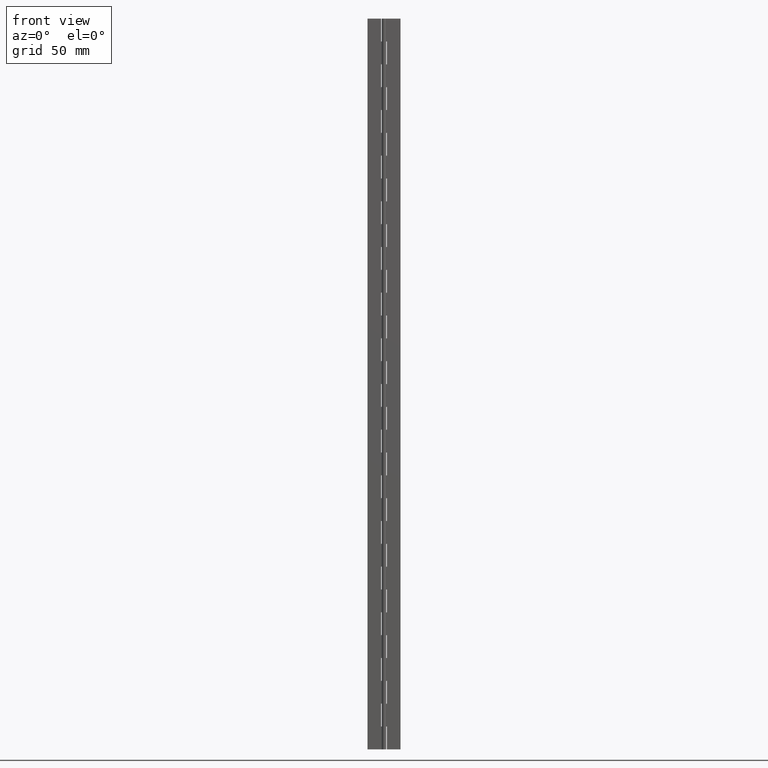
[diagram: clean part render]
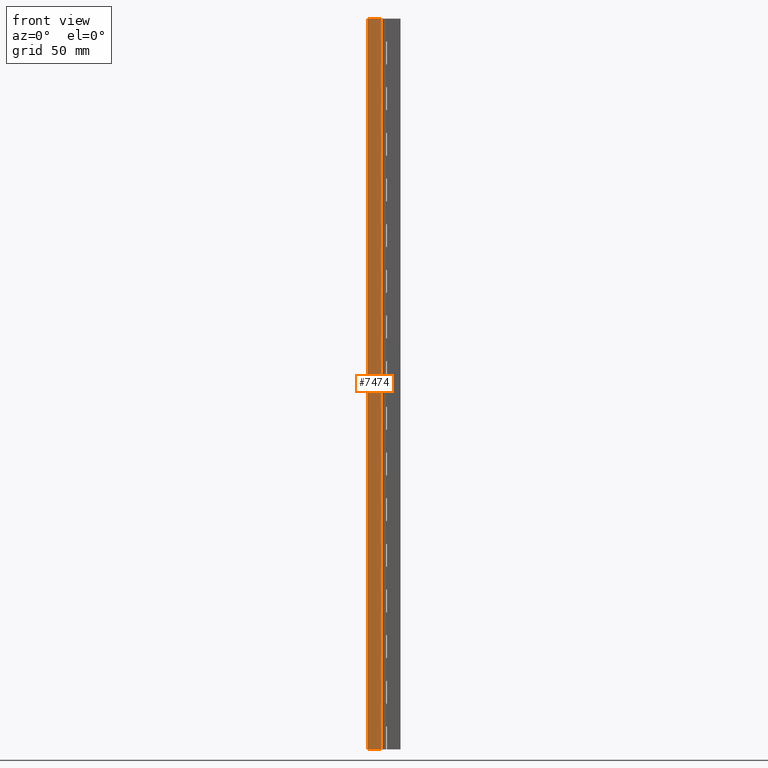
[diagram: same view with one face highlighted and labeled with its STEP entity id]
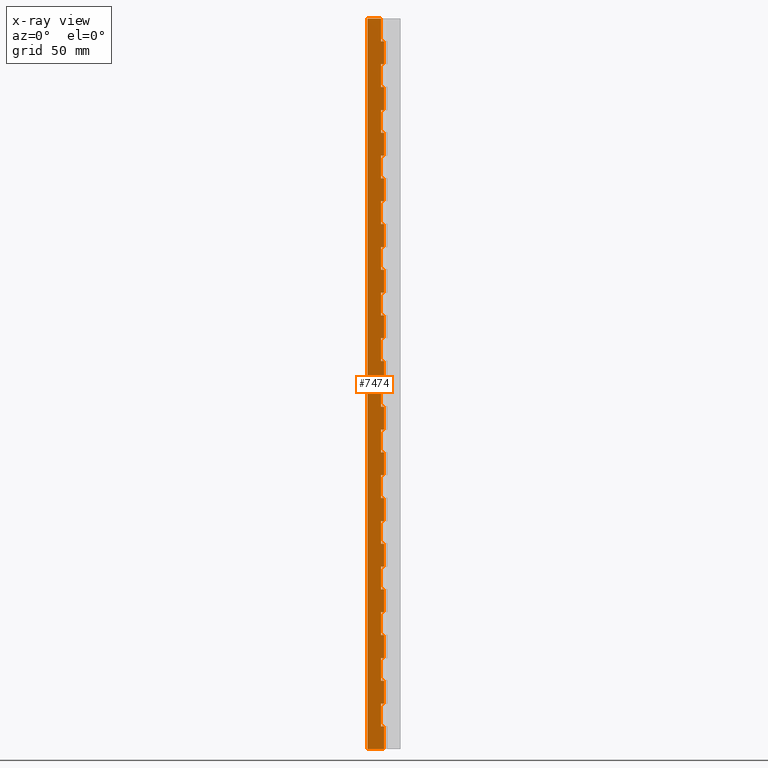
[diagram: x-ray of the same camera — body ghosted, the highlighted face saturated]
A machine part, front view. The second image highlights one B-rep face of the part: STEP entity #7474.
The next image is the same camera in x-ray: the body ghosted, the highlighted face saturated — about 0% of this face is hidden behind the body in this view.
In plain terms, the highlighted face is a freeform B-spline surface patch.
Its self-contained STEP definition (entity closure, byte-faithful):
#4486=CARTESIAN_POINT('',(-1.599998000000000,0.750000000000028,400.0));
#4487=VERTEX_POINT('',#4486);
#4488=CARTESIAN_POINT('',(-1.599998000000000,0.750000000000028,387.500000000000000));
#4489=VERTEX_POINT('',#4488);
#4490=CARTESIAN_POINT('',(-1.599998000000000,0.750000000000028,400.0));
#4491=CARTESIAN_POINT('',(-1.599998000000000,0.750000000000028,387.500000000000000));
#4492=QUASI_UNIFORM_CURVE('',1,(#4490,#4491),.UNSPECIFIED.,.F.,.U.);
#4493=EDGE_CURVE('',#4487,#4489,#4492,.T.);
#4551=CARTESIAN_POINT('',(4.592507E-017,0.750000000000000,387.500000000000000));
#4552=VERTEX_POINT('',#4551);
#4553=CARTESIAN_POINT('',(-1.599998000000000,0.750000000000028,387.500000000000000));
#4554=CARTESIAN_POINT('',(4.592507E-017,0.750000000000000,387.500000000000000));
#4555=QUASI_UNIFORM_CURVE('',1,(#4553,#4554),.UNSPECIFIED.,.F.,.U.);
#4556=EDGE_CURVE('',#4489,#4552,#4555,.T.);
#4622=CARTESIAN_POINT('',(4.592274E-017,0.750000000000000,375.0));
#4623=VERTEX_POINT('',#4622);
#4643=CARTESIAN_POINT('',(-1.599998000000000,0.750000000000028,375.0));
#4644=VERTEX_POINT('',#4643);
#4645=CARTESIAN_POINT('',(4.592274E-017,0.750000000000000,375.0));
#4646=CARTESIAN_POINT('',(-1.599998000000000,0.750000000000028,375.0));
#4647=QUASI_UNIFORM_CURVE('',1,(#4645,#4646),.UNSPECIFIED.,.F.,.U.);
#4648=EDGE_CURVE('',#4623,#4644,#4647,.T.);
#4670=CARTESIAN_POINT('',(-1.599998000000000,0.750000000000028,362.500000000000000));
#4671=VERTEX_POINT('',#4670);
#4672=CARTESIAN_POINT('',(-1.599998000000000,0.750000000000028,375.0));
#4673=CARTESIAN_POINT('',(-1.599998000000000,0.750000000000028,362.500000000000000));
#4674=QUASI_UNIFORM_CURVE('',1,(#4672,#4673),.UNSPECIFIED.,.F.,.U.);
#4675=EDGE_CURVE('',#4644,#4671,#4674,.T.);
#4727=CARTESIAN_POINT('',(4.592507E-017,0.750000000000000,362.500000000000000));
#4728=VERTEX_POINT('',#4727);
#4729=CARTESIAN_POINT('',(-1.599998000000000,0.750000000000028,362.500000000000000));
#4730=CARTESIAN_POINT('',(4.592507E-017,0.750000000000000,362.500000000000000));
#4731=QUASI_UNIFORM_CURVE('',1,(#4729,#4730),.UNSPECIFIED.,.F.,.U.);
#4732=EDGE_CURVE('',#4671,#4728,#4731,.T.);
#4798=CARTESIAN_POINT('',(4.592274E-017,0.750000000000000,350.0));
#4799=VERTEX_POINT('',#4798);
#4819=CARTESIAN_POINT('',(-1.599998000000000,0.750000000000028,350.0));
#4820=VERTEX_POINT('',#4819);
#4821=CARTESIAN_POINT('',(4.592274E-017,0.750000000000000,350.0));
#4822=CARTESIAN_POINT('',(-1.599998000000000,0.750000000000028,350.0));
#4823=QUASI_UNIFORM_CURVE('',1,(#4821,#4822),.UNSPECIFIED.,.F.,.U.);
#4824=EDGE_CURVE('',#4799,#4820,#4823,.T.);
#4846=CARTESIAN_POINT('',(-1.599998000000000,0.750000000000028,337.500000000000000));
#4847=VERTEX_POINT('',#4846);
#4848=CARTESIAN_POINT('',(-1.599998000000000,0.750000000000028,350.0));
#4849=CARTESIAN_POINT('',(-1.599998000000000,0.750000000000028,337.500000000000000));
#4850=QUASI_UNIFORM_CURVE('',1,(#4848,#4849),.UNSPECIFIED.,.F.,.U.);
#4851=EDGE_CURVE('',#4820,#4847,#4850,.T.);
#4903=CARTESIAN_POINT('',(4.592507E-017,0.750000000000000,337.500000000000000));
#4904=VERTEX_POINT('',#4903);
#4905=CARTESIAN_POINT('',(-1.599998000000000,0.750000000000028,337.500000000000000));
#4906=CARTESIAN_POINT('',(4.592507E-017,0.750000000000000,337.500000000000000));
#4907=QUASI_UNIFORM_CURVE('',1,(#4905,#4906),.UNSPECIFIED.,.F.,.U.);
#4908=EDGE_CURVE('',#4847,#4904,#4907,.T.);
#4974=CARTESIAN_POINT('',(4.592274E-017,0.750000000000000,325.0));
#4975=VERTEX_POINT('',#4974);
#4995=CARTESIAN_POINT('',(-1.599998000000000,0.750000000000028,325.0));
#4996=VERTEX_POINT('',#4995);
#4997=CARTESIAN_POINT('',(4.592274E-017,0.750000000000000,325.0));
#4998=CARTESIAN_POINT('',(-1.599998000000000,0.750000000000028,325.0));
#4999=QUASI_UNIFORM_CURVE('',1,(#4997,#4998),.UNSPECIFIED.,.F.,.U.);
#5000=EDGE_CURVE('',#4975,#4996,#4999,.T.);
#5022=CARTESIAN_POINT('',(-1.599998000000000,0.750000000000028,312.500000000000000));
#5023=VERTEX_POINT('',#5022);
#5024=CARTESIAN_POINT('',(-1.599998000000000,0.750000000000028,325.0));
#5025=CARTESIAN_POINT('',(-1.599998000000000,0.750000000000028,312.500000000000000));
#5026=QUASI_UNIFORM_CURVE('',1,(#5024,#5025),.UNSPECIFIED.,.F.,.U.);
#5027=EDGE_CURVE('',#4996,#5023,#5026,.T.);
#5079=CARTESIAN_POINT('',(4.592507E-017,0.750000000000000,312.500000000000000));
#5080=VERTEX_POINT('',#5079);
#5081=CARTESIAN_POINT('',(-1.599998000000000,0.750000000000028,312.500000000000000));
#5082=CARTESIAN_POINT('',(4.592507E-017,0.750000000000000,312.500000000000000));
#5083=QUASI_UNIFORM_CURVE('',1,(#5081,#5082),.UNSPECIFIED.,.F.,.U.);
#5084=EDGE_CURVE('',#5023,#5080,#5083,.T.);
#5150=CARTESIAN_POINT('',(4.592274E-017,0.750000000000000,300.0));
#5151=VERTEX_POINT('',#5150);
#5171=CARTESIAN_POINT('',(-1.599998000000000,0.750000000000028,300.0));
#5172=VERTEX_POINT('',#5171);
#5173=CARTESIAN_POINT('',(4.592274E-017,0.750000000000000,300.0));
#5174=CARTESIAN_POINT('',(-1.599998000000000,0.750000000000028,300.0));
#5175=QUASI_UNIFORM_CURVE('',1,(#5173,#5174),.UNSPECIFIED.,.F.,.U.);
#5176=EDGE_CURVE('',#5151,#5172,#5175,.T.);
#5198=CARTESIAN_POINT('',(-1.599998000000000,0.750000000000028,287.500000000000000));
#5199=VERTEX_POINT('',#5198);
#5200=CARTESIAN_POINT('',(-1.599998000000000,0.750000000000028,300.0));
#5201=CARTESIAN_POINT('',(-1.599998000000000,0.750000000000028,287.500000000000000));
#5202=QUASI_UNIFORM_CURVE('',1,(#5200,#5201),.UNSPECIFIED.,.F.,.U.);
#5203=EDGE_CURVE('',#5172,#5199,#5202,.T.);
#5255=CARTESIAN_POINT('',(4.592507E-017,0.750000000000000,287.500000000000000));
#5256=VERTEX_POINT('',#5255);
#5257=CARTESIAN_POINT('',(-1.599998000000000,0.750000000000028,287.500000000000000));
#5258=CARTESIAN_POINT('',(4.592507E-017,0.750000000000000,287.500000000000000));
#5259=QUASI_UNIFORM_CURVE('',1,(#5257,#5258),.UNSPECIFIED.,.F.,.U.);
#5260=EDGE_CURVE('',#5199,#5256,#5259,.T.);
#5326=CARTESIAN_POINT('',(4.592274E-017,0.750000000000000,275.0));
#5327=VERTEX_POINT('',#5326);
#5347=CARTESIAN_POINT('',(-1.599998000000000,0.750000000000028,275.0));
#5348=VERTEX_POINT('',#5347);
#5349=CARTESIAN_POINT('',(4.592274E-017,0.750000000000000,275.0));
#5350=CARTESIAN_POINT('',(-1.599998000000000,0.750000000000028,275.0));
#5351=QUASI_UNIFORM_CURVE('',1,(#5349,#5350),.UNSPECIFIED.,.F.,.U.);
#5352=EDGE_CURVE('',#5327,#5348,#5351,.T.);
#5374=CARTESIAN_POINT('',(-1.599998000000000,0.750000000000028,262.500000000000000));
#5375=VERTEX_POINT('',#5374);
#5376=CARTESIAN_POINT('',(-1.599998000000000,0.750000000000028,275.0));
#5377=CARTESIAN_POINT('',(-1.599998000000000,0.750000000000028,262.500000000000000));
#5378=QUASI_UNIFORM_CURVE('',1,(#5376,#5377),.UNSPECIFIED.,.F.,.U.);
#5379=EDGE_CURVE('',#5348,#5375,#5378,.T.);
#5431=CARTESIAN_POINT('',(4.592507E-017,0.750000000000000,262.500000000000000));
#5432=VERTEX_POINT('',#5431);
#5433=CARTESIAN_POINT('',(-1.599998000000000,0.750000000000028,262.500000000000000));
#5434=CARTESIAN_POINT('',(4.592507E-017,0.750000000000000,262.500000000000000));
#5435=QUASI_UNIFORM_CURVE('',1,(#5433,#5434),.UNSPECIFIED.,.F.,.U.);
#5436=EDGE_CURVE('',#5375,#5432,#5435,.T.);
#5502=CARTESIAN_POINT('',(4.592274E-017,0.750000000000000,250.0));
#5503=VERTEX_POINT('',#5502);
#5523=CARTESIAN_POINT('',(-1.599998000000000,0.750000000000028,250.0));
#5524=VERTEX_POINT('',#5523);
#5525=CARTESIAN_POINT('',(4.592274E-017,0.750000000000000,250.0));
#5526=CARTESIAN_POINT('',(-1.599998000000000,0.750000000000028,250.0));
#5527=QUASI_UNIFORM_CURVE('',1,(#5525,#5526),.UNSPECIFIED.,.F.,.U.);
#5528=EDGE_CURVE('',#5503,#5524,#5527,.T.);
#5550=CARTESIAN_POINT('',(-1.599998000000000,0.750000000000028,237.500000000000000));
#5551=VERTEX_POINT('',#5550);
#5552=CARTESIAN_POINT('',(-1.599998000000000,0.750000000000028,250.0));
#5553=CARTESIAN_POINT('',(-1.599998000000000,0.750000000000028,237.500000000000000));
#5554=QUASI_UNIFORM_CURVE('',1,(#5552,#5553),.UNSPECIFIED.,.F.,.U.);
#5555=EDGE_CURVE('',#5524,#5551,#5554,.T.);
#5607=CARTESIAN_POINT('',(4.592507E-017,0.750000000000000,237.500000000000000));
#5608=VERTEX_POINT('',#5607);
#5609=CARTESIAN_POINT('',(-1.599998000000000,0.750000000000028,237.500000000000000));
#5610=CARTESIAN_POINT('',(4.592507E-017,0.750000000000000,237.500000000000000));
#5611=QUASI_UNIFORM_CURVE('',1,(#5609,#5610),.UNSPECIFIED.,.F.,.U.);
#5612=EDGE_CURVE('',#5551,#5608,#5611,.T.);
#5678=CARTESIAN_POINT('',(4.592274E-017,0.750000000000000,225.0));
#5679=VERTEX_POINT('',#5678);
#5699=CARTESIAN_POINT('',(-1.599998000000000,0.750000000000028,225.0));
#5700=VERTEX_POINT('',#5699);
#5701=CARTESIAN_POINT('',(4.592274E-017,0.750000000000000,225.0));
#5702=CARTESIAN_POINT('',(-1.599998000000000,0.750000000000028,225.0));
#5703=QUASI_UNIFORM_CURVE('',1,(#5701,#5702),.UNSPECIFIED.,.F.,.U.);
#5704=EDGE_CURVE('',#5679,#5700,#5703,.T.);
#5726=CARTESIAN_POINT('',(-1.599998000000000,0.750000000000028,212.500000000000000));
#5727=VERTEX_POINT('',#5726);
#5728=CARTESIAN_POINT('',(-1.599998000000000,0.750000000000028,225.0));
#5729=CARTESIAN_POINT('',(-1.599998000000000,0.750000000000028,212.500000000000000));
#5730=QUASI_UNIFORM_CURVE('',1,(#5728,#5729),.UNSPECIFIED.,.F.,.U.);
#5731=EDGE_CURVE('',#5700,#5727,#5730,.T.);
#5783=CARTESIAN_POINT('',(4.592507E-017,0.750000000000000,212.500000000000000));
#5784=VERTEX_POINT('',#5783);
#5785=CARTESIAN_POINT('',(-1.599998000000000,0.750000000000028,212.500000000000000));
#5786=CARTESIAN_POINT('',(4.592507E-017,0.750000000000000,212.500000000000000));
#5787=QUASI_UNIFORM_CURVE('',1,(#5785,#5786),.UNSPECIFIED.,.F.,.U.);
#5788=EDGE_CURVE('',#5727,#5784,#5787,.T.);
#5854=CARTESIAN_POINT('',(4.592274E-017,0.750000000000000,200.0));
#5855=VERTEX_POINT('',#5854);
#5875=CARTESIAN_POINT('',(-1.599998000000000,0.750000000000028,200.0));
#5876=VERTEX_POINT('',#5875);
#5877=CARTESIAN_POINT('',(4.592274E-017,0.750000000000000,200.0));
#5878=CARTESIAN_POINT('',(-1.599998000000000,0.750000000000028,200.0));
#5879=QUASI_UNIFORM_CURVE('',1,(#5877,#5878),.UNSPECIFIED.,.F.,.U.);
#5880=EDGE_CURVE('',#5855,#5876,#5879,.T.);
#5902=CARTESIAN_POINT('',(-1.599998000000000,0.750000000000028,187.500000000000000));
#5903=VERTEX_POINT('',#5902);
#5904=CARTESIAN_POINT('',(-1.599998000000000,0.750000000000028,200.0));
#5905=CARTESIAN_POINT('',(-1.599998000000000,0.750000000000028,187.500000000000000));
#5906=QUASI_UNIFORM_CURVE('',1,(#5904,#5905),.UNSPECIFIED.,.F.,.U.);
#5907=EDGE_CURVE('',#5876,#5903,#5906,.T.);
#5959=CARTESIAN_POINT('',(4.592507E-017,0.750000000000000,187.500000000000000));
#5960=VERTEX_POINT('',#5959);
#5961=CARTESIAN_POINT('',(-1.599998000000000,0.750000000000028,187.500000000000000));
#5962=CARTESIAN_POINT('',(4.592507E-017,0.750000000000000,187.500000000000000));
#5963=QUASI_UNIFORM_CURVE('',1,(#5961,#5962),.UNSPECIFIED.,.F.,.U.);
#5964=EDGE_CURVE('',#5903,#5960,#5963,.T.);
#6030=CARTESIAN_POINT('',(4.592274E-017,0.750000000000000,175.0));
#6031=VERTEX_POINT('',#6030);
#6051=CARTESIAN_POINT('',(-1.599998000000000,0.750000000000028,175.0));
#6052=VERTEX_POINT('',#6051);
#6053=CARTESIAN_POINT('',(4.592274E-017,0.750000000000000,175.0));
#6054=CARTESIAN_POINT('',(-1.599998000000000,0.750000000000028,175.0));
#6055=QUASI_UNIFORM_CURVE('',1,(#6053,#6054),.UNSPECIFIED.,.F.,.U.);
#6056=EDGE_CURVE('',#6031,#6052,#6055,.T.);
#6078=CARTESIAN_POINT('',(-1.599998000000000,0.750000000000028,162.500000000000000));
#6079=VERTEX_POINT('',#6078);
#6080=CARTESIAN_POINT('',(-1.599998000000000,0.750000000000028,175.0));
#6081=CARTESIAN_POINT('',(-1.599998000000000,0.750000000000028,162.500000000000000));
#6082=QUASI_UNIFORM_CURVE('',1,(#6080,#6081),.UNSPECIFIED.,.F.,.U.);
#6083=EDGE_CURVE('',#6052,#6079,#6082,.T.);
#6135=CARTESIAN_POINT('',(4.592507E-017,0.750000000000000,162.500000000000000));
#6136=VERTEX_POINT('',#6135);
#6137=CARTESIAN_POINT('',(-1.599998000000000,0.750000000000028,162.500000000000000));
#6138=CARTESIAN_POINT('',(4.592507E-017,0.750000000000000,162.500000000000000));
#6139=QUASI_UNIFORM_CURVE('',1,(#6137,#6138),.UNSPECIFIED.,.F.,.U.);
#6140=EDGE_CURVE('',#6079,#6136,#6139,.T.);
#6206=CARTESIAN_POINT('',(4.592274E-017,0.750000000000000,150.0));
#6207=VERTEX_POINT('',#6206);
#6227=CARTESIAN_POINT('',(-1.599998000000000,0.750000000000028,150.0));
#6228=VERTEX_POINT('',#6227);
#6229=CARTESIAN_POINT('',(4.592274E-017,0.750000000000000,150.0));
#6230=CARTESIAN_POINT('',(-1.599998000000000,0.750000000000028,150.0));
#6231=QUASI_UNIFORM_CURVE('',1,(#6229,#6230),.UNSPECIFIED.,.F.,.U.);
#6232=EDGE_CURVE('',#6207,#6228,#6231,.T.);
#6254=CARTESIAN_POINT('',(-1.599998000000000,0.750000000000028,137.500000000000000));
#6255=VERTEX_POINT('',#6254);
#6256=CARTESIAN_POINT('',(-1.599998000000000,0.750000000000028,150.0));
#6257=CARTESIAN_POINT('',(-1.599998000000000,0.750000000000028,137.500000000000000));
#6258=QUASI_UNIFORM_CURVE('',1,(#6256,#6257),.UNSPECIFIED.,.F.,.U.);
#6259=EDGE_CURVE('',#6228,#6255,#6258,.T.);
#6311=CARTESIAN_POINT('',(4.592507E-017,0.750000000000000,137.500000000000000));
#6312=VERTEX_POINT('',#6311);
#6313=CARTESIAN_POINT('',(-1.599998000000000,0.750000000000028,137.500000000000000));
#6314=CARTESIAN_POINT('',(4.592507E-017,0.750000000000000,137.500000000000000));
#6315=QUASI_UNIFORM_CURVE('',1,(#6313,#6314),.UNSPECIFIED.,.F.,.U.);
#6316=EDGE_CURVE('',#6255,#6312,#6315,.T.);
#6382=CARTESIAN_POINT('',(4.592274E-017,0.750000000000000,125.0));
#6383=VERTEX_POINT('',#6382);
#6403=CARTESIAN_POINT('',(-1.599998000000000,0.750000000000028,125.0));
#6404=VERTEX_POINT('',#6403);
#6405=CARTESIAN_POINT('',(4.592274E-017,0.750000000000000,125.0));
#6406=CARTESIAN_POINT('',(-1.599998000000000,0.750000000000028,125.0));
#6407=QUASI_UNIFORM_CURVE('',1,(#6405,#6406),.UNSPECIFIED.,.F.,.U.);
#6408=EDGE_CURVE('',#6383,#6404,#6407,.T.);
#6430=CARTESIAN_POINT('',(-1.599998000000000,0.750000000000028,112.500000000000000));
#6431=VERTEX_POINT('',#6430);
#6432=CARTESIAN_POINT('',(-1.599998000000000,0.750000000000028,125.0));
#6433=CARTESIAN_POINT('',(-1.599998000000000,0.750000000000028,112.500000000000000));
#6434=QUASI_UNIFORM_CURVE('',1,(#6432,#6433),.UNSPECIFIED.,.F.,.U.);
#6435=EDGE_CURVE('',#6404,#6431,#6434,.T.);
#6487=CARTESIAN_POINT('',(4.592507E-017,0.750000000000000,112.500000000000000));
#6488=VERTEX_POINT('',#6487);
#6489=CARTESIAN_POINT('',(-1.599998000000000,0.750000000000028,112.500000000000000));
#6490=CARTESIAN_POINT('',(4.592507E-017,0.750000000000000,112.500000000000000));
#6491=QUASI_UNIFORM_CURVE('',1,(#6489,#6490),.UNSPECIFIED.,.F.,.U.);
#6492=EDGE_CURVE('',#6431,#6488,#6491,.T.);
#6558=CARTESIAN_POINT('',(4.592274E-017,0.750000000000000,100.0));
#6559=VERTEX_POINT('',#6558);
#6579=CARTESIAN_POINT('',(-1.599998000000000,0.750000000000028,100.0));
#6580=VERTEX_POINT('',#6579);
#6581=CARTESIAN_POINT('',(4.592274E-017,0.750000000000000,100.0));
#6582=CARTESIAN_POINT('',(-1.599998000000000,0.750000000000028,100.0));
#6583=QUASI_UNIFORM_CURVE('',1,(#6581,#6582),.UNSPECIFIED.,.F.,.U.);
#6584=EDGE_CURVE('',#6559,#6580,#6583,.T.);
#6606=CARTESIAN_POINT('',(-1.599998000000000,0.750000000000028,87.500000000000000));
#6607=VERTEX_POINT('',#6606);
#6608=CARTESIAN_POINT('',(-1.599998000000000,0.750000000000028,100.0));
#6609=CARTESIAN_POINT('',(-1.599998000000000,0.750000000000028,87.500000000000000));
#6610=QUASI_UNIFORM_CURVE('',1,(#6608,#6609),.UNSPECIFIED.,.F.,.U.);
#6611=EDGE_CURVE('',#6580,#6607,#6610,.T.);
#6663=CARTESIAN_POINT('',(4.592507E-017,0.750000000000000,87.500000000000000));
#6664=VERTEX_POINT('',#6663);
#6665=CARTESIAN_POINT('',(-1.599998000000000,0.750000000000028,87.500000000000000));
#6666=CARTESIAN_POINT('',(4.592507E-017,0.750000000000000,87.500000000000000));
#6667=QUASI_UNIFORM_CURVE('',1,(#6665,#6666),.UNSPECIFIED.,.F.,.U.);
#6668=EDGE_CURVE('',#6607,#6664,#6667,.T.);
#6734=CARTESIAN_POINT('',(4.592274E-017,0.750000000000000,75.0));
#6735=VERTEX_POINT('',#6734);
#6755=CARTESIAN_POINT('',(-1.599998000000000,0.750000000000028,75.0));
#6756=VERTEX_POINT('',#6755);
#6757=CARTESIAN_POINT('',(4.592274E-017,0.750000000000000,75.0));
#6758=CARTESIAN_POINT('',(-1.599998000000000,0.750000000000028,75.0));
#6759=QUASI_UNIFORM_CURVE('',1,(#6757,#6758),.UNSPECIFIED.,.F.,.U.);
#6760=EDGE_CURVE('',#6735,#6756,#6759,.T.);
#6782=CARTESIAN_POINT('',(-1.599998000000000,0.750000000000028,62.500000000000000));
#6783=VERTEX_POINT('',#6782);
#6784=CARTESIAN_POINT('',(-1.599998000000000,0.750000000000028,75.0));
#6785=CARTESIAN_POINT('',(-1.599998000000000,0.750000000000028,62.500000000000000));
#6786=QUASI_UNIFORM_CURVE('',1,(#6784,#6785),.UNSPECIFIED.,.F.,.U.);
#6787=EDGE_CURVE('',#6756,#6783,#6786,.T.);
#6839=CARTESIAN_POINT('',(4.592507E-017,0.750000000000000,62.500000000000000));
#6840=VERTEX_POINT('',#6839);
#6841=CARTESIAN_POINT('',(-1.599998000000000,0.750000000000028,62.500000000000000));
#6842=CARTESIAN_POINT('',(4.592507E-017,0.750000000000000,62.500000000000000));
#6843=QUASI_UNIFORM_CURVE('',1,(#6841,#6842),.UNSPECIFIED.,.F.,.U.);
#6844=EDGE_CURVE('',#6783,#6840,#6843,.T.);
#6910=CARTESIAN_POINT('',(4.592274E-017,0.750000000000000,50.0));
#6911=VERTEX_POINT('',#6910);
#6931=CARTESIAN_POINT('',(-1.599998000000000,0.750000000000028,50.0));
#6932=VERTEX_POINT('',#6931);
#6933=CARTESIAN_POINT('',(4.592274E-017,0.750000000000000,50.0));
#6934=CARTESIAN_POINT('',(-1.599998000000000,0.750000000000028,50.0));
#6935=QUASI_UNIFORM_CURVE('',1,(#6933,#6934),.UNSPECIFIED.,.F.,.U.);
#6936=EDGE_CURVE('',#6911,#6932,#6935,.T.);
#6958=CARTESIAN_POINT('',(-1.599998000000000,0.750000000000028,37.500000000000000));
#6959=VERTEX_POINT('',#6958);
#6960=CARTESIAN_POINT('',(-1.599998000000000,0.750000000000028,50.0));
#6961=CARTESIAN_POINT('',(-1.599998000000000,0.750000000000028,37.500000000000000));
#6962=QUASI_UNIFORM_CURVE('',1,(#6960,#6961),.UNSPECIFIED.,.F.,.U.);
#6963=EDGE_CURVE('',#6932,#6959,#6962,.T.);
#7015=CARTESIAN_POINT('',(4.592507E-017,0.750000000000000,37.500000000000000));
#7016=VERTEX_POINT('',#7015);
#7017=CARTESIAN_POINT('',(-1.599998000000000,0.750000000000028,37.500000000000000));
#7018=CARTESIAN_POINT('',(4.592507E-017,0.750000000000000,37.500000000000000));
#7019=QUASI_UNIFORM_CURVE('',1,(#7017,#7018),.UNSPECIFIED.,.F.,.U.);
#7020=EDGE_CURVE('',#6959,#7016,#7019,.T.);
#7086=CARTESIAN_POINT('',(4.592274E-017,0.750000000000000,25.0));
#7087=VERTEX_POINT('',#7086);
#7107=CARTESIAN_POINT('',(-1.599998000000000,0.750000000000028,25.0));
#7108=VERTEX_POINT('',#7107);
#7109=CARTESIAN_POINT('',(4.592274E-017,0.750000000000000,25.0));
#7110=CARTESIAN_POINT('',(-1.599998000000000,0.750000000000028,25.0));
#7111=QUASI_UNIFORM_CURVE('',1,(#7109,#7110),.UNSPECIFIED.,.F.,.U.);
#7112=EDGE_CURVE('',#7087,#7108,#7111,.T.);
#7134=CARTESIAN_POINT('',(-1.599998000000000,0.750000000000028,12.500000000000000));
#7135=VERTEX_POINT('',#7134);
#7136=CARTESIAN_POINT('',(-1.599998000000000,0.750000000000028,25.0));
#7137=CARTESIAN_POINT('',(-1.599998000000000,0.750000000000028,12.500000000000000));
#7138=QUASI_UNIFORM_CURVE('',1,(#7136,#7137),.UNSPECIFIED.,.F.,.U.);
#7139=EDGE_CURVE('',#7108,#7135,#7138,.T.);
#7191=CARTESIAN_POINT('',(4.592507E-017,0.750000000000000,12.500000000000000));
#7192=VERTEX_POINT('',#7191);
#7193=CARTESIAN_POINT('',(-1.599998000000000,0.750000000000028,12.500000000000000));
#7194=CARTESIAN_POINT('',(4.592507E-017,0.750000000000000,12.500000000000000));
#7195=QUASI_UNIFORM_CURVE('',1,(#7193,#7194),.UNSPECIFIED.,.F.,.U.);
#7196=EDGE_CURVE('',#7135,#7192,#7195,.T.);
#7232=CARTESIAN_POINT('',(-9.0,0.750000000000000,0.0));
#7233=VERTEX_POINT('',#7232);
#7276=CARTESIAN_POINT('',(4.592274E-017,0.750000000000000,0.0));
#7277=VERTEX_POINT('',#7276);
#7297=CARTESIAN_POINT('',(4.592274E-017,0.750000000000000,0.0));
#7298=CARTESIAN_POINT('',(-9.0,0.750000000000000,0.0));
#7299=QUASI_UNIFORM_CURVE('',1,(#7297,#7298),.UNSPECIFIED.,.F.,.U.);
#7300=EDGE_CURVE('',#7277,#7233,#7299,.T.);
#7310=CARTESIAN_POINT('',(-9.0,0.750000000000000,400.0));
#7311=VERTEX_POINT('',#7310);
#7312=CARTESIAN_POINT('',(-1.599998000000000,0.750000000000028,400.0));
#7313=CARTESIAN_POINT('',(-9.0,0.750000000000000,400.0));
#7314=QUASI_UNIFORM_CURVE('',1,(#7312,#7313),.UNSPECIFIED.,.F.,.U.);
#7315=EDGE_CURVE('',#4487,#7311,#7314,.T.);
#7333=CARTESIAN_POINT('',(-9.449549982556254,0.750000000000000,419.979999224722410));
#7334=CARTESIAN_POINT('',(-9.449549982556254,0.750000000000000,-19.980009953558440));
#7335=CARTESIAN_POINT('',(0.449550223955065,0.750000000000000,419.979999224722410));
#7336=CARTESIAN_POINT('',(0.449550223955065,0.750000000000000,-19.980009953558440));
#7337=B_SPLINE_SURFACE_WITH_KNOTS('',1,1,((#7333,#7335),(#7334,#7336)),.UNSPECIFIED.,.F.,.F.,.U.,(2,2),(2,2),(0.0,439.960009178280930),(0.0,9.899100206511319),.UNSPECIFIED.);
#7338=ORIENTED_EDGE('',*,*,#4556,.F.);
#7339=ORIENTED_EDGE('',*,*,#4493,.F.);
#7340=ORIENTED_EDGE('',*,*,#7315,.T.);
#7341=CARTESIAN_POINT('',(-9.0,0.750000000000000,400.0));
#7342=CARTESIAN_POINT('',(-9.0,0.750000000000000,0.0));
#7343=QUASI_UNIFORM_CURVE('',1,(#7341,#7342),.UNSPECIFIED.,.F.,.U.);
#7344=EDGE_CURVE('',#7311,#7233,#7343,.T.);
#7345=ORIENTED_EDGE('',*,*,#7344,.T.);
#7346=ORIENTED_EDGE('',*,*,#7300,.F.);
#7347=CARTESIAN_POINT('',(4.592507E-017,0.750000000000000,12.500000000000000));
#7348=CARTESIAN_POINT('',(4.592274E-017,0.750000000000000,0.0));
#7349=QUASI_UNIFORM_CURVE('',1,(#7347,#7348),.UNSPECIFIED.,.F.,.U.);
#7350=EDGE_CURVE('',#7192,#7277,#7349,.T.);
#7351=ORIENTED_EDGE('',*,*,#7350,.F.);
#7352=ORIENTED_EDGE('',*,*,#7196,.F.);
#7353=ORIENTED_EDGE('',*,*,#7139,.F.);
#7354=ORIENTED_EDGE('',*,*,#7112,.F.);
#7355=CARTESIAN_POINT('',(4.592507E-017,0.750000000000000,37.500000000000000));
#7356=CARTESIAN_POINT('',(4.592274E-017,0.750000000000000,25.0));
#7357=QUASI_UNIFORM_CURVE('',1,(#7355,#7356),.UNSPECIFIED.,.F.,.U.);
#7358=EDGE_CURVE('',#7016,#7087,#7357,.T.);
#7359=ORIENTED_EDGE('',*,*,#7358,.F.);
#7360=ORIENTED_EDGE('',*,*,#7020,.F.);
#7361=ORIENTED_EDGE('',*,*,#6963,.F.);
#7362=ORIENTED_EDGE('',*,*,#6936,.F.);
#7363=CARTESIAN_POINT('',(4.592507E-017,0.750000000000000,62.500000000000000));
#7364=CARTESIAN_POINT('',(4.592274E-017,0.750000000000000,50.0));
#7365=QUASI_UNIFORM_CURVE('',1,(#7363,#7364),.UNSPECIFIED.,.F.,.U.);
#7366=EDGE_CURVE('',#6840,#6911,#7365,.T.);
#7367=ORIENTED_EDGE('',*,*,#7366,.F.);
#7368=ORIENTED_EDGE('',*,*,#6844,.F.);
#7369=ORIENTED_EDGE('',*,*,#6787,.F.);
#7370=ORIENTED_EDGE('',*,*,#6760,.F.);
#7371=CARTESIAN_POINT('',(4.592507E-017,0.750000000000000,87.500000000000000));
#7372=CARTESIAN_POINT('',(4.592274E-017,0.750000000000000,75.0));
#7373=QUASI_UNIFORM_CURVE('',1,(#7371,#7372),.UNSPECIFIED.,.F.,.U.);
#7374=EDGE_CURVE('',#6664,#6735,#7373,.T.);
#7375=ORIENTED_EDGE('',*,*,#7374,.F.);
#7376=ORIENTED_EDGE('',*,*,#6668,.F.);
#7377=ORIENTED_EDGE('',*,*,#6611,.F.);
#7378=ORIENTED_EDGE('',*,*,#6584,.F.);
#7379=CARTESIAN_POINT('',(4.592507E-017,0.750000000000000,112.500000000000000));
#7380=CARTESIAN_POINT('',(4.592274E-017,0.750000000000000,100.0));
#7381=QUASI_UNIFORM_CURVE('',1,(#7379,#7380),.UNSPECIFIED.,.F.,.U.);
#7382=EDGE_CURVE('',#6488,#6559,#7381,.T.);
#7383=ORIENTED_EDGE('',*,*,#7382,.F.);
#7384=ORIENTED_EDGE('',*,*,#6492,.F.);
#7385=ORIENTED_EDGE('',*,*,#6435,.F.);
#7386=ORIENTED_EDGE('',*,*,#6408,.F.);
#7387=CARTESIAN_POINT('',(4.592507E-017,0.750000000000000,137.500000000000000));
#7388=CARTESIAN_POINT('',(4.592274E-017,0.750000000000000,125.0));
#7389=QUASI_UNIFORM_CURVE('',1,(#7387,#7388),.UNSPECIFIED.,.F.,.U.);
#7390=EDGE_CURVE('',#6312,#6383,#7389,.T.);
#7391=ORIENTED_EDGE('',*,*,#7390,.F.);
#7392=ORIENTED_EDGE('',*,*,#6316,.F.);
#7393=ORIENTED_EDGE('',*,*,#6259,.F.);
#7394=ORIENTED_EDGE('',*,*,#6232,.F.);
#7395=CARTESIAN_POINT('',(4.592507E-017,0.750000000000000,162.500000000000000));
#7396=CARTESIAN_POINT('',(4.592274E-017,0.750000000000000,150.0));
#7397=QUASI_UNIFORM_CURVE('',1,(#7395,#7396),.UNSPECIFIED.,.F.,.U.);
#7398=EDGE_CURVE('',#6136,#6207,#7397,.T.);
#7399=ORIENTED_EDGE('',*,*,#7398,.F.);
#7400=ORIENTED_EDGE('',*,*,#6140,.F.);
#7401=ORIENTED_EDGE('',*,*,#6083,.F.);
#7402=ORIENTED_EDGE('',*,*,#6056,.F.);
#7403=CARTESIAN_POINT('',(4.592507E-017,0.750000000000000,187.500000000000000));
#7404=CARTESIAN_POINT('',(4.592274E-017,0.750000000000000,175.0));
#7405=QUASI_UNIFORM_CURVE('',1,(#7403,#7404),.UNSPECIFIED.,.F.,.U.);
#7406=EDGE_CURVE('',#5960,#6031,#7405,.T.);
#7407=ORIENTED_EDGE('',*,*,#7406,.F.);
#7408=ORIENTED_EDGE('',*,*,#5964,.F.);
#7409=ORIENTED_EDGE('',*,*,#5907,.F.);
#7410=ORIENTED_EDGE('',*,*,#5880,.F.);
#7411=CARTESIAN_POINT('',(4.592507E-017,0.750000000000000,212.500000000000000));
#7412=CARTESIAN_POINT('',(4.592274E-017,0.750000000000000,200.0));
#7413=QUASI_UNIFORM_CURVE('',1,(#7411,#7412),.UNSPECIFIED.,.F.,.U.);
#7414=EDGE_CURVE('',#5784,#5855,#7413,.T.);
#7415=ORIENTED_EDGE('',*,*,#7414,.F.);
#7416=ORIENTED_EDGE('',*,*,#5788,.F.);
#7417=ORIENTED_EDGE('',*,*,#5731,.F.);
#7418=ORIENTED_EDGE('',*,*,#5704,.F.);
#7419=CARTESIAN_POINT('',(4.592507E-017,0.750000000000000,237.500000000000000));
#7420=CARTESIAN_POINT('',(4.592274E-017,0.750000000000000,225.0));
#7421=QUASI_UNIFORM_CURVE('',1,(#7419,#7420),.UNSPECIFIED.,.F.,.U.);
#7422=EDGE_CURVE('',#5608,#5679,#7421,.T.);
#7423=ORIENTED_EDGE('',*,*,#7422,.F.);
#7424=ORIENTED_EDGE('',*,*,#5612,.F.);
#7425=ORIENTED_EDGE('',*,*,#5555,.F.);
#7426=ORIENTED_EDGE('',*,*,#5528,.F.);
#7427=CARTESIAN_POINT('',(4.592507E-017,0.750000000000000,262.500000000000000));
#7428=CARTESIAN_POINT('',(4.592274E-017,0.750000000000000,250.0));
#7429=QUASI_UNIFORM_CURVE('',1,(#7427,#7428),.UNSPECIFIED.,.F.,.U.);
#7430=EDGE_CURVE('',#5432,#5503,#7429,.T.);
#7431=ORIENTED_EDGE('',*,*,#7430,.F.);
#7432=ORIENTED_EDGE('',*,*,#5436,.F.);
#7433=ORIENTED_EDGE('',*,*,#5379,.F.);
#7434=ORIENTED_EDGE('',*,*,#5352,.F.);
#7435=CARTESIAN_POINT('',(4.592507E-017,0.750000000000000,287.500000000000000));
#7436=CARTESIAN_POINT('',(4.592274E-017,0.750000000000000,275.0));
#7437=QUASI_UNIFORM_CURVE('',1,(#7435,#7436),.UNSPECIFIED.,.F.,.U.);
#7438=EDGE_CURVE('',#5256,#5327,#7437,.T.);
#7439=ORIENTED_EDGE('',*,*,#7438,.F.);
#7440=ORIENTED_EDGE('',*,*,#5260,.F.);
#7441=ORIENTED_EDGE('',*,*,#5203,.F.);
#7442=ORIENTED_EDGE('',*,*,#5176,.F.);
#7443=CARTESIAN_POINT('',(4.592507E-017,0.750000000000000,312.500000000000000));
#7444=CARTESIAN_POINT('',(4.592274E-017,0.750000000000000,300.0));
#7445=QUASI_UNIFORM_CURVE('',1,(#7443,#7444),.UNSPECIFIED.,.F.,.U.);
#7446=EDGE_CURVE('',#5080,#5151,#7445,.T.);
#7447=ORIENTED_EDGE('',*,*,#7446,.F.);
#7448=ORIENTED_EDGE('',*,*,#5084,.F.);
#7449=ORIENTED_EDGE('',*,*,#5027,.F.);
#7450=ORIENTED_EDGE('',*,*,#5000,.F.);
#7451=CARTESIAN_POINT('',(4.592507E-017,0.750000000000000,337.500000000000000));
#7452=CARTESIAN_POINT('',(4.592274E-017,0.750000000000000,325.0));
#7453=QUASI_UNIFORM_CURVE('',1,(#7451,#7452),.UNSPECIFIED.,.F.,.U.);
#7454=EDGE_CURVE('',#4904,#4975,#7453,.T.);
#7455=ORIENTED_EDGE('',*,*,#7454,.F.);
#7456=ORIENTED_EDGE('',*,*,#4908,.F.);
#7457=ORIENTED_EDGE('',*,*,#4851,.F.);
#7458=ORIENTED_EDGE('',*,*,#4824,.F.);
#7459=CARTESIAN_POINT('',(4.592507E-017,0.750000000000000,362.500000000000000));
#7460=CARTESIAN_POINT('',(4.592274E-017,0.750000000000000,350.0));
#7461=QUASI_UNIFORM_CURVE('',1,(#7459,#7460),.UNSPECIFIED.,.F.,.U.);
#7462=EDGE_CURVE('',#4728,#4799,#7461,.T.);
#7463=ORIENTED_EDGE('',*,*,#7462,.F.);
#7464=ORIENTED_EDGE('',*,*,#4732,.F.);
#7465=ORIENTED_EDGE('',*,*,#4675,.F.);
#7466=ORIENTED_EDGE('',*,*,#4648,.F.);
#7467=CARTESIAN_POINT('',(4.592507E-017,0.750000000000000,387.500000000000000));
#7468=CARTESIAN_POINT('',(4.592274E-017,0.750000000000000,375.0));
#7469=QUASI_UNIFORM_CURVE('',1,(#7467,#7468),.UNSPECIFIED.,.F.,.U.);
#7470=EDGE_CURVE('',#4552,#4623,#7469,.T.);
#7471=ORIENTED_EDGE('',*,*,#7470,.F.);
#7472=EDGE_LOOP('',(#7338,#7339,#7340,#7345,#7346,#7351,#7352,#7353,#7354,#7359,#7360,#7361,#7362,#7367,#7368,#7369,#7370,#7375,#7376,#7377,#7378,#7383,#7384,#7385,#7386,#7391,#7392,#7393,#7394,#7399,#7400,#7401,#7402,#7407,#7408,#7409,#7410,#7415,#7416,#7417,#7418,#7423,#7424,#7425,#7426,#7431,#7432,#7433,#7434,#7439,#7440,#7441,#7442,#7447,#7448,#7449,#7450,#7455,#7456,#7457,#7458,#7463,#7464,#7465,#7466,#7471));
#7473=FACE_OUTER_BOUND('',#7472,.T.);
#7474=ADVANCED_FACE('',(#7473),#7337,.T.);